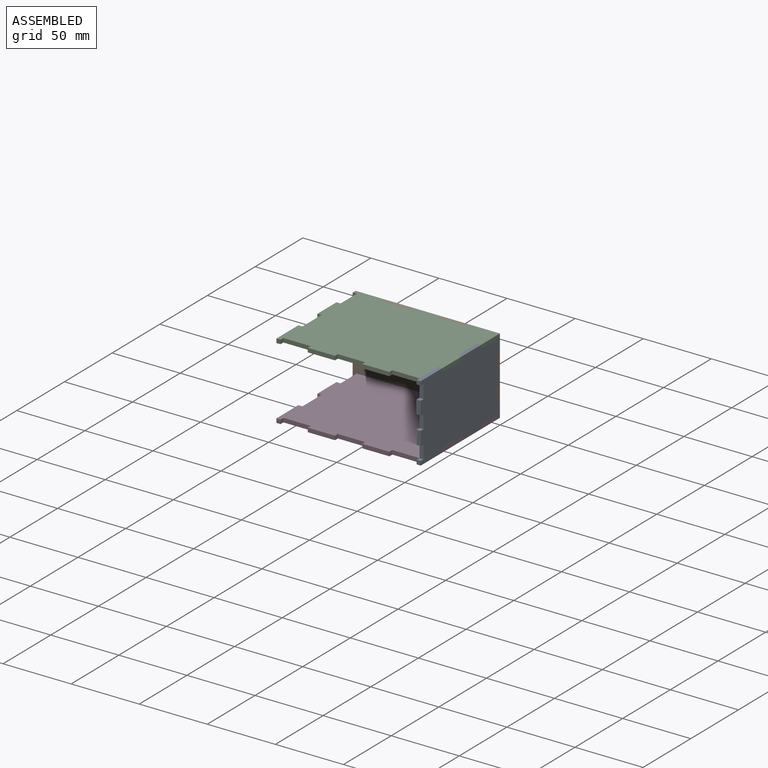
[diagram: assembled view]
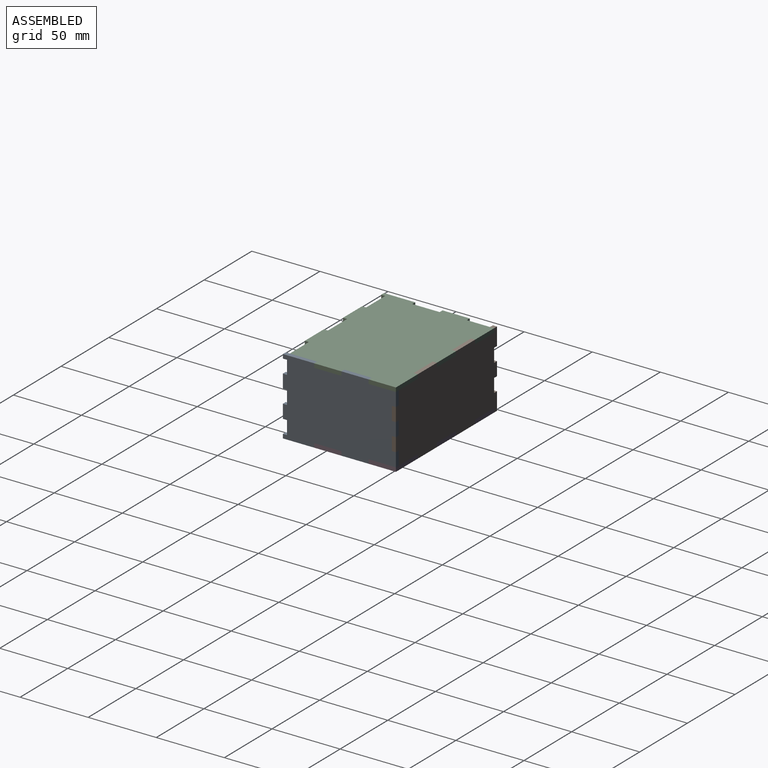
[diagram: assembled view, second angle]
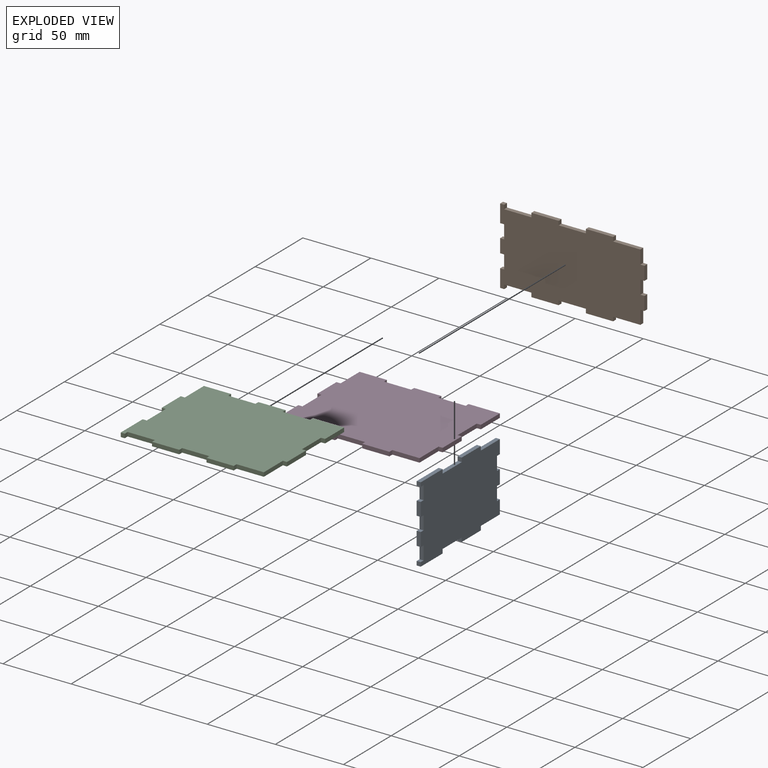
[diagram: exploded view]
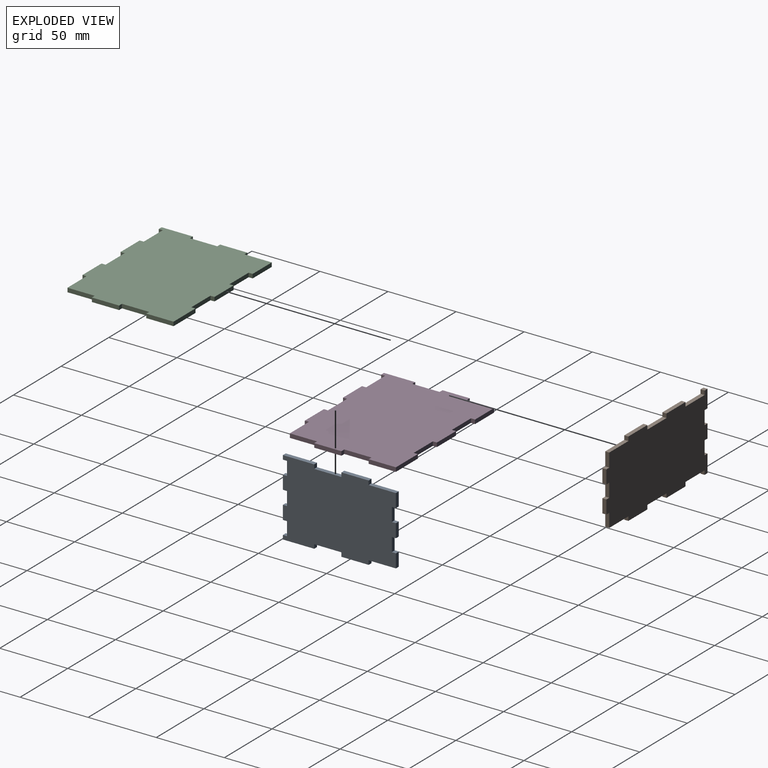
[diagram: exploded view, second angle]
ASSEMBLY  parts=4 mates=3
PART A: 38 faces, bbox 3x83x56 mm
  f0: plane 10x3mm, normal (0,1,0), area 30mm2, adj f1,f35,f36,f37
  f1: plane 20x3mm, normal (0,0,1), area 60mm2, adj f0,f2,f36,f37
  f2: plane 3x3mm, normal (0,1,0), area 9mm2, adj f1,f3,f36,f37
  f3: plane 20x3mm, normal (0,0,1), area 60mm2, adj f2,f4,f36,f37
  f4: plane 3x3mm, normal (0,-1,0), area 9mm2, adj f3,f5,f36,f37
  f5: plane 20x3mm, normal (0,0,1), area 60mm2, adj f4,f6,f36,f37
  f6: plane 3x3mm, normal (0,1,0), area 9mm2, adj f5,f7,f36,f37
  f7: plane 23x3mm, normal (0,0,1), area 69mm2, adj f6,f8,f36,f37
  f8: plane 3x3mm, normal (0,-1,0), area 9mm2, adj f7,f9,f36,f37
  f9: plane 3x3mm, normal (0,0,-1), area 9mm2, adj f8,f10,f36,f37
  f10: plane 10x3mm, normal (0,-1,0), area 30mm2, adj f9,f11,f36,f37
  f11: plane 3x3mm, normal (0,0,1), area 9mm2, adj f10,f12,f36,f37
  f12: plane 10x3mm, normal (0,-1,0), area 30mm2, adj f11,f13,f36,f37
  f13: plane 3x3mm, normal (0,0,-1), area 9mm2, adj f12,f14,f36,f37
  f14: plane 10x3mm, normal (0,-1,0), area 30mm2, adj f13,f15,f36,f37
  f15: plane 3x3mm, normal (0,0,1), area 9mm2, adj f14,f16,f36,f37
  f16: plane 10x3mm, normal (0,-1,0), area 30mm2, adj f15,f17,f36,f37
  f17: plane 3x3mm, normal (0,0,-1), area 9mm2, adj f16,f18,f36,f37
  f18: plane 10x3mm, normal (0,-1,0), area 30mm2, adj f17,f19,f36,f37
  f19: plane 3x3mm, normal (0,0,1), area 9mm2, adj f18,f20,f36,f37
  f20: plane 3x3mm, normal (0,-1,0), area 9mm2, adj f19,f21,f36,f37
  f21: plane 23x3mm, normal (0,0,-1), area 69mm2, adj f20,f22,f36,f37
  f22: plane 3x3mm, normal (0,1,0), area 9mm2, adj f21,f23,f36,f37
  f23: plane 20x3mm, normal (0,0,-1), area 60mm2, adj f22,f24,f36,f37
  f24: plane 3x3mm, normal (0,-1,0), area 9mm2, adj f23,f25,f36,f37
  f25: plane 20x3mm, normal (0,0,-1), area 60mm2, adj f24,f26,f36,f37
  f26: plane 3x3mm, normal (0,1,0), area 9mm2, adj f25,f27,f36,f37
  f27: plane 20x3mm, normal (0,0,-1), area 60mm2, adj f26,f28,f36,f37
  f28: plane 10x3mm, normal (0,1,0), area 30mm2, adj f27,f29,f36,f37
  f29: plane 3x3mm, normal (0,0,1), area 9mm2, adj f28,f30,f36,f37
  f30: plane 10x3mm, normal (0,1,0), area 30mm2, adj f29,f31,f36,f37
  f31: plane 3x3mm, normal (0,0,-1), area 9mm2, adj f30,f32,f36,f37
  f32: plane 10x3mm, normal (0,1,0), area 30mm2, adj f31,f33,f36,f37
  f33: plane 3x3mm, normal (0,0,1), area 9mm2, adj f32,f34,f36,f37
  f34: plane 10x3mm, normal (0,1,0), area 30mm2, adj f33,f35,f36,f37
  f35: plane 3x3mm, normal (0,0,-1), area 9mm2, adj f0,f34,f36,f37
  f36: plane 83x56mm, normal (-1,0,0), area 4258mm2, adj f0,f1,f2,f3,f4,f5,f6,f7
  f37: plane 83x56mm, normal (1,0,0), area 4258mm2, adj f0,f1,f2,f3,f4,f5,f6,f7
PART B: 42 faces, bbox 106x3x56 mm
  f0: plane 20x3mm, normal (0,0,1), area 60mm2, adj f1,f39,f40,f41
  f1: plane 3x3mm, normal (1,0,0), area 9mm2, adj f0,f2,f40,f41
  f2: plane 20x3mm, normal (0,0,1), area 60mm2, adj f1,f3,f40,f41
  f3: plane 10x3mm, normal (1,0,0), area 30mm2, adj f2,f4,f40,f41
  f4: plane 3x3mm, normal (0,0,1), area 9mm2, adj f3,f5,f40,f41
  f5: plane 10x3mm, normal (1,0,0), area 30mm2, adj f4,f6,f40,f41
  f6: plane 3x3mm, normal (0,0,-1), area 9mm2, adj f5,f7,f40,f41
  f7: plane 10x3mm, normal (1,0,0), area 30mm2, adj f6,f8,f40,f41
  f8: plane 3x3mm, normal (0,0,1), area 9mm2, adj f7,f9,f40,f41
  f9: plane 10x3mm, normal (1,0,0), area 30mm2, adj f8,f10,f40,f41
  f10: plane 3x3mm, normal (0,0,-1), area 9mm2, adj f9,f11,f40,f41
  f11: plane 10x3mm, normal (1,0,0), area 30mm2, adj f10,f12,f40,f41
  f12: plane 20x3mm, normal (0,0,-1), area 60mm2, adj f11,f13,f40,f41
  f13: plane 3x3mm, normal (1,0,0), area 9mm2, adj f12,f14,f40,f41
  f14: plane 20x3mm, normal (0,0,-1), area 60mm2, adj f13,f15,f40,f41
  f15: plane 3x3mm, normal (-1,0,0), area 9mm2, adj f14,f16,f40,f41
  f16: plane 20x3mm, normal (0,0,-1), area 60mm2, adj f15,f17,f40,f41
  f17: plane 3x3mm, normal (1,0,0), area 9mm2, adj f16,f18,f40,f41
  f18: plane 20x3mm, normal (0,0,-1), area 60mm2, adj f17,f19,f40,f41
  f19: plane 3x3mm, normal (-1,0,0), area 9mm2, adj f18,f20,f40,f41
  f20: plane 20x3mm, normal (0,0,-1), area 60mm2, adj f19,f21,f40,f41
  f21: plane 3x3mm, normal (1,0,0), area 9mm2, adj f20,f22,f40,f41
  f22: plane 3x3mm, normal (0,0,-1), area 9mm2, adj f21,f23,f40,f41
  f23: plane 13x3mm, normal (-1,0,0), area 39mm2, adj f22,f24,f40,f41
  f24: plane 3x3mm, normal (0,0,1), area 9mm2, adj f23,f25,f40,f41
  f25: plane 10x3mm, normal (-1,0,0), area 30mm2, adj f24,f26,f40,f41
  f26: plane 3x3mm, normal (0,0,-1), area 9mm2, adj f25,f27,f40,f41
  f27: plane 10x3mm, normal (-1,0,0), area 30mm2, adj f26,f28,f40,f41
  f28: plane 3x3mm, normal (0,0,1), area 9mm2, adj f27,f29,f40,f41
  f29: plane 10x3mm, normal (-1,0,0), area 30mm2, adj f28,f30,f40,f41
  f30: plane 3x3mm, normal (0,0,-1), area 9mm2, adj f29,f31,f40,f41
  f31: plane 13x3mm, normal (-1,0,0), area 39mm2, adj f30,f32,f40,f41
  f32: plane 3x3mm, normal (0,0,1), area 9mm2, adj f31,f33,f40,f41
  f33: plane 3x3mm, normal (1,0,0), area 9mm2, adj f32,f34,f40,f41
  f34: plane 20x3mm, normal (0,0,1), area 60mm2, adj f33,f35,f40,f41
  f35: plane 3x3mm, normal (-1,0,0), area 9mm2, adj f34,f36,f40,f41
  f36: plane 20x3mm, normal (0,0,1), area 60mm2, adj f35,f37,f40,f41
  f37: plane 3x3mm, normal (1,0,0), area 9mm2, adj f36,f38,f40,f41
  f38: plane 20x3mm, normal (0,0,1), area 60mm2, adj f37,f39,f40,f41
  f39: plane 3x3mm, normal (-1,0,0), area 9mm2, adj f0,f38,f40,f41
  f40: plane 106x56mm, normal (0,-1,0), area 5408mm2, adj f0,f1,f2,f3,f4,f5,f6,f7
  f41: plane 106x56mm, normal (0,1,0), area 5408mm2, adj f0,f1,f2,f3,f4,f5,f6,f7
PART C: 36 faces, bbox 106x83x3 mm
  f0: plane 23x3mm, normal (-1,0,0), area 69mm2, adj f1,f33,f34,f35
  f1: plane 3x3mm, normal (0,-1,0), area 9mm2, adj f0,f2,f34,f35
  f2: plane 3x3mm, normal (1,0,0), area 9mm2, adj f1,f3,f34,f35
  f3: plane 20x3mm, normal (0,-1,0), area 60mm2, adj f2,f4,f34,f35
  f4: plane 3x3mm, normal (-1,0,0), area 9mm2, adj f3,f5,f34,f35
  f5: plane 20x3mm, normal (0,-1,0), area 60mm2, adj f4,f6,f34,f35
  f6: plane 3x3mm, normal (1,0,0), area 9mm2, adj f5,f7,f34,f35
  f7: plane 20x3mm, normal (0,-1,0), area 60mm2, adj f6,f8,f34,f35
  f8: plane 3x3mm, normal (-1,0,0), area 9mm2, adj f7,f9,f34,f35
  f9: plane 20x3mm, normal (0,-1,0), area 60mm2, adj f8,f10,f34,f35
  f10: plane 3x3mm, normal (1,0,0), area 9mm2, adj f9,f11,f34,f35
  f11: plane 20x3mm, normal (0,-1,0), area 60mm2, adj f10,f12,f34,f35
  f12: plane 20x3mm, normal (1,0,0), area 60mm2, adj f11,f13,f34,f35
  f13: plane 3x3mm, normal (0,-1,0), area 9mm2, adj f12,f14,f34,f35
  f14: plane 20x3mm, normal (1,0,0), area 60mm2, adj f13,f15,f34,f35
  f15: plane 3x3mm, normal (0,1,0), area 9mm2, adj f14,f16,f34,f35
  f16: plane 20x3mm, normal (1,0,0), area 60mm2, adj f15,f17,f34,f35
  f17: plane 3x3mm, normal (0,-1,0), area 9mm2, adj f16,f18,f34,f35
  f18: plane 20x3mm, normal (1,0,0), area 60mm2, adj f17,f19,f34,f35
  f19: plane 23x3mm, normal (0,1,0), area 69mm2, adj f18,f20,f34,f35
  f20: plane 3x3mm, normal (-1,0,0), area 9mm2, adj f19,f21,f34,f35
  f21: plane 20x3mm, normal (0,1,0), area 60mm2, adj f20,f22,f34,f35
  f22: plane 3x3mm, normal (1,0,0), area 9mm2, adj f21,f23,f34,f35
  f23: plane 20x3mm, normal (0,1,0), area 60mm2, adj f22,f24,f34,f35
  f24: plane 3x3mm, normal (-1,0,0), area 9mm2, adj f23,f25,f34,f35
  f25: plane 20x3mm, normal (0,1,0), area 60mm2, adj f24,f26,f34,f35
  f26: plane 3x3mm, normal (1,0,0), area 9mm2, adj f25,f27,f34,f35
  f27: plane 20x3mm, normal (0,1,0), area 60mm2, adj f26,f28,f34,f35
  f28: plane 20x3mm, normal (-1,0,0), area 60mm2, adj f27,f29,f34,f35
  f29: plane 3x3mm, normal (0,1,0), area 9mm2, adj f28,f30,f34,f35
  f30: plane 20x3mm, normal (-1,0,0), area 60mm2, adj f29,f31,f34,f35
  f31: plane 3x3mm, normal (0,-1,0), area 9mm2, adj f30,f32,f34,f35
  f32: plane 20x3mm, normal (-1,0,0), area 60mm2, adj f31,f33,f34,f35
  f33: plane 3x3mm, normal (0,1,0), area 9mm2, adj f0,f32,f34,f35
  f34: plane 106x83mm, normal (0,0,1), area 8249mm2, adj f0,f1,f2,f3,f4,f5,f6,f7
  f35: plane 106x83mm, normal (0,0,-1), area 8249mm2, adj f0,f1,f2,f3,f4,f5,f6,f7
PART D: 36 faces, bbox 106x83x3 mm
  f0: plane 23x3mm, normal (-1,0,0), area 69mm2, adj f1,f33,f34,f35
  f1: plane 3x3mm, normal (0,-1,0), area 9mm2, adj f0,f2,f34,f35
  f2: plane 3x3mm, normal (1,0,0), area 9mm2, adj f1,f3,f34,f35
  f3: plane 20x3mm, normal (0,-1,0), area 60mm2, adj f2,f4,f34,f35
  f4: plane 3x3mm, normal (-1,0,0), area 9mm2, adj f3,f5,f34,f35
  f5: plane 20x3mm, normal (0,-1,0), area 60mm2, adj f4,f6,f34,f35
  f6: plane 3x3mm, normal (1,0,0), area 9mm2, adj f5,f7,f34,f35
  f7: plane 20x3mm, normal (0,-1,0), area 60mm2, adj f6,f8,f34,f35
  f8: plane 3x3mm, normal (-1,0,0), area 9mm2, adj f7,f9,f34,f35
  f9: plane 20x3mm, normal (0,-1,0), area 60mm2, adj f8,f10,f34,f35
  f10: plane 3x3mm, normal (1,0,0), area 9mm2, adj f9,f11,f34,f35
  f11: plane 20x3mm, normal (0,-1,0), area 60mm2, adj f10,f12,f34,f35
  f12: plane 20x3mm, normal (1,0,0), area 60mm2, adj f11,f13,f34,f35
  f13: plane 3x3mm, normal (0,-1,0), area 9mm2, adj f12,f14,f34,f35
  f14: plane 20x3mm, normal (1,0,0), area 60mm2, adj f13,f15,f34,f35
  f15: plane 3x3mm, normal (0,1,0), area 9mm2, adj f14,f16,f34,f35
  f16: plane 20x3mm, normal (1,0,0), area 60mm2, adj f15,f17,f34,f35
  f17: plane 3x3mm, normal (0,-1,0), area 9mm2, adj f16,f18,f34,f35
  f18: plane 20x3mm, normal (1,0,0), area 60mm2, adj f17,f19,f34,f35
  f19: plane 23x3mm, normal (0,1,0), area 69mm2, adj f18,f20,f34,f35
  f20: plane 3x3mm, normal (-1,0,0), area 9mm2, adj f19,f21,f34,f35
  f21: plane 20x3mm, normal (0,1,0), area 60mm2, adj f20,f22,f34,f35
  f22: plane 3x3mm, normal (1,0,0), area 9mm2, adj f21,f23,f34,f35
  f23: plane 20x3mm, normal (0,1,0), area 60mm2, adj f22,f24,f34,f35
  f24: plane 3x3mm, normal (-1,0,0), area 9mm2, adj f23,f25,f34,f35
  f25: plane 20x3mm, normal (0,1,0), area 60mm2, adj f24,f26,f34,f35
  f26: plane 3x3mm, normal (1,0,0), area 9mm2, adj f25,f27,f34,f35
  f27: plane 20x3mm, normal (0,1,0), area 60mm2, adj f26,f28,f34,f35
  f28: plane 20x3mm, normal (-1,0,0), area 60mm2, adj f27,f29,f34,f35
  f29: plane 3x3mm, normal (0,1,0), area 9mm2, adj f28,f30,f34,f35
  f30: plane 20x3mm, normal (-1,0,0), area 60mm2, adj f29,f31,f34,f35
  f31: plane 3x3mm, normal (0,-1,0), area 9mm2, adj f30,f32,f34,f35
  f32: plane 20x3mm, normal (-1,0,0), area 60mm2, adj f31,f33,f34,f35
  f33: plane 3x3mm, normal (0,1,0), area 9mm2, adj f0,f32,f34,f35
  f34: plane 106x83mm, normal (0,0,1), area 8249mm2, adj f0,f1,f2,f3,f4,f5,f6,f7
  f35: plane 106x83mm, normal (0,0,-1), area 8249mm2, adj f0,f1,f2,f3,f4,f5,f6,f7
PLACE A t=(26.3,96.46,31.36)mm
PLACE B t=(26.3,96.46,31.36)mm
PLACE C t=(26.3,96.46,31.36)mm
PLACE D t=(26.3,96.46,31.36)mm
MATE fastened C.f13 <-> A.f6  axis (0,-1,0) through (77.8,76.46,85.86)mm
MATE fastened D.f13 <-> A.f22  axis (0,-1,0) through (77.8,76.46,32.86)mm
MATE fastened A.f33 <-> B.f6  axis (0,0,1) through (77.8,134.96,64.36)mm
